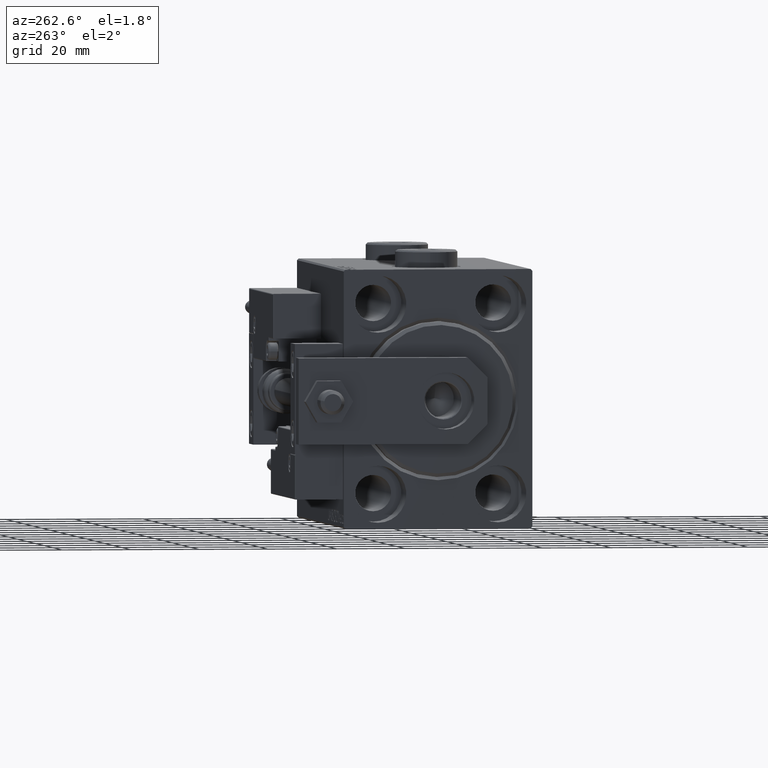
[diagram: clean part render]
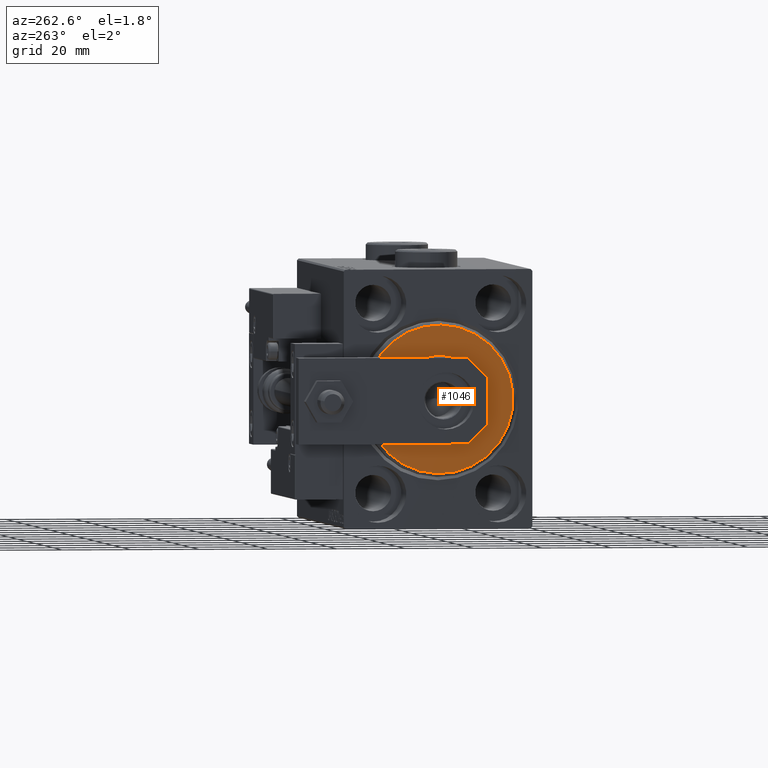
[diagram: same view with one face highlighted and labeled with its STEP entity id]
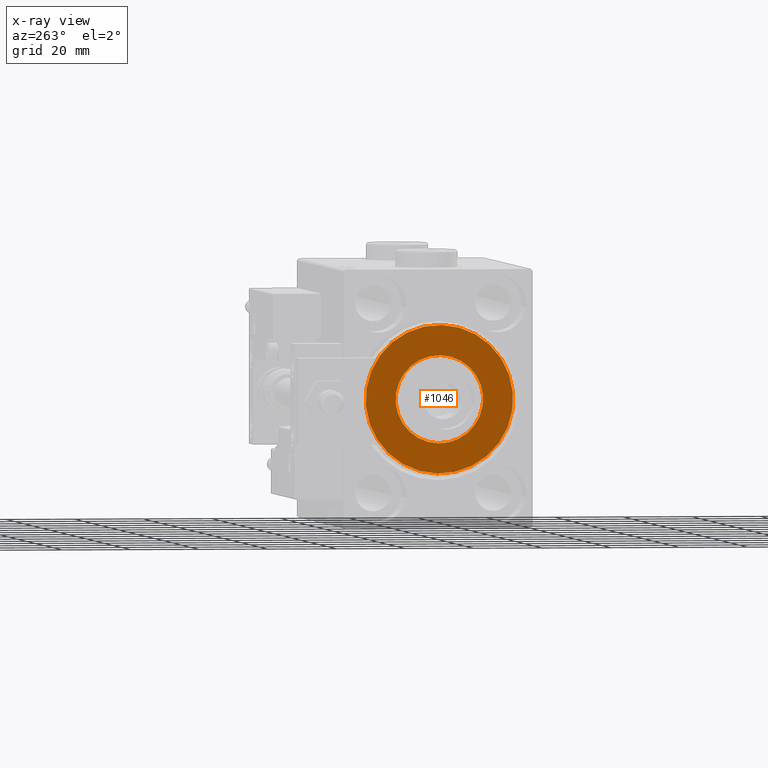
[diagram: x-ray of the same camera — body ghosted, the highlighted face saturated]
A machine part, auxiliary view. The second image highlights one B-rep face of the part: STEP entity #1046.
The next image is the same camera in x-ray: the body ghosted, the highlighted face saturated — about 0% of this face is hidden behind the body in this view.
In plain terms, the highlighted planar face has unit normal (-1, 0, 0).
Its self-contained STEP definition (entity closure, byte-faithful):
#574 = CIRCLE ( 'NONE', #22211, 12.75000000000000000 ) ;
#805 = ORIENTED_EDGE ( 'NONE', *, *, #22490, .T. ) ;
#1046 = ADVANCED_FACE ( 'NONE', ( #39947, #11071 ), #26953, .T. ) ;
#1189 = CARTESIAN_POINT ( 'NONE',  ( 3.000000000000000000, 0.000000000000000000, 0.000000000000000000 ) ) ;
#1882 = ORIENTED_EDGE ( 'NONE', *, *, #36088, .T. ) ;
#3884 = CARTESIAN_POINT ( 'NONE',  ( 3.000000000000000000, 0.000000000000000000, 12.75000000000000000 ) ) ;
#7413 = AXIS2_PLACEMENT_3D ( 'NONE', #8304, #48148, #31995 ) ;
#8304 = CARTESIAN_POINT ( 'NONE',  ( 3.000000000000000000, 0.000000000000000000, 0.000000000000000000 ) ) ;
#9467 = VERTEX_POINT ( 'NONE', #29674 ) ;
#9540 = DIRECTION ( 'NONE',  ( -1.000000000000000000, 0.000000000000000000, -0.000000000000000000 ) ) ;
#11071 = FACE_BOUND ( 'NONE', #12310, .T. ) ;
#12247 = EDGE_LOOP ( 'NONE', ( #44591, #805 ) ) ;
#12310 = EDGE_LOOP ( 'NONE', ( #1882, #28488 ) ) ;
#12440 = CARTESIAN_POINT ( 'NONE',  ( 3.000000000000000000, 0.000000000000000000, 0.000000000000000000 ) ) ;
#15938 = AXIS2_PLACEMENT_3D ( 'NONE', #12440, #43968, #28582 ) ;
#17637 = EDGE_CURVE ( 'NONE', #9467, #49197, #574, .T. ) ;
#20110 = VERTEX_POINT ( 'NONE', #48541 ) ;
#21377 = CARTESIAN_POINT ( 'NONE',  ( 3.000000000000000000, 0.000000000000000000, 0.000000000000000000 ) ) ;
#22211 = AXIS2_PLACEMENT_3D ( 'NONE', #21377, #41967, #22410 ) ;
#22410 = DIRECTION ( 'NONE',  ( 0.000000000000000000, 0.000000000000000000, -1.000000000000000000 ) ) ;
#22490 = EDGE_CURVE ( 'NONE', #20110, #40811, #23180, .T. ) ;
#23180 = CIRCLE ( 'NONE', #7413, 21.50000000000000355 ) ;
#26179 = AXIS2_PLACEMENT_3D ( 'NONE', #39181, #38931, #27209 ) ;
#26953 = PLANE ( 'NONE',  #26179 ) ;
#27209 = DIRECTION ( 'NONE',  ( 0.000000000000000000, 0.000000000000000000, -1.000000000000000000 ) ) ;
#28488 = ORIENTED_EDGE ( 'NONE', *, *, #17637, .T. ) ;
#28582 = DIRECTION ( 'NONE',  ( 0.000000000000000000, 0.000000000000000000, -1.000000000000000000 ) ) ;
#29674 = CARTESIAN_POINT ( 'NONE',  ( 3.000000000000000000, 1.561424668912874914E-15, -12.75000000000000000 ) ) ;
#31995 = DIRECTION ( 'NONE',  ( 0.000000000000000000, 0.000000000000000000, -1.000000000000000000 ) ) ;
#32472 = DIRECTION ( 'NONE',  ( 0.000000000000000000, 0.000000000000000000, -1.000000000000000000 ) ) ;
#33880 = EDGE_CURVE ( 'NONE', #40811, #20110, #38403, .T. ) ;
#36088 = EDGE_CURVE ( 'NONE', #49197, #9467, #50205, .T. ) ;
#38403 = CIRCLE ( 'NONE', #15938, 21.50000000000000355 ) ;
#38931 = DIRECTION ( 'NONE',  ( 1.000000000000000000, -0.000000000000000000, 0.000000000000000000 ) ) ;
#39181 = CARTESIAN_POINT ( 'NONE',  ( 3.000000000000000000, 0.000000000000000000, 0.000000000000000000 ) ) ;
#39925 = CARTESIAN_POINT ( 'NONE',  ( 3.000000000000000000, 0.000000000000000000, 21.50000000000000355 ) ) ;
#39947 = FACE_OUTER_BOUND ( 'NONE', #12247, .T. ) ;
#40811 = VERTEX_POINT ( 'NONE', #39925 ) ;
#41967 = DIRECTION ( 'NONE',  ( -1.000000000000000000, 0.000000000000000000, -0.000000000000000000 ) ) ;
#43968 = DIRECTION ( 'NONE',  ( 1.000000000000000000, -0.000000000000000000, 0.000000000000000000 ) ) ;
#44591 = ORIENTED_EDGE ( 'NONE', *, *, #33880, .T. ) ;
#46852 = AXIS2_PLACEMENT_3D ( 'NONE', #1189, #9540, #32472 ) ;
#48148 = DIRECTION ( 'NONE',  ( 1.000000000000000000, -0.000000000000000000, 0.000000000000000000 ) ) ;
#48541 = CARTESIAN_POINT ( 'NONE',  ( 3.000000000000000000, 2.694222958124177598E-15, -21.50000000000000355 ) ) ;
#49197 = VERTEX_POINT ( 'NONE', #3884 ) ;
#50205 = CIRCLE ( 'NONE', #46852, 12.75000000000000000 ) ;